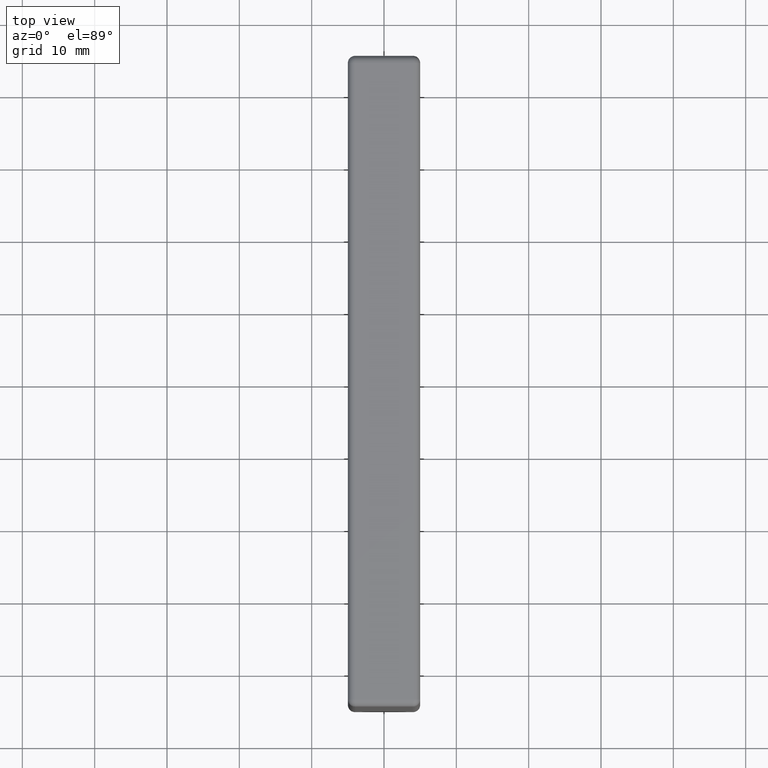
[diagram: clean part render]
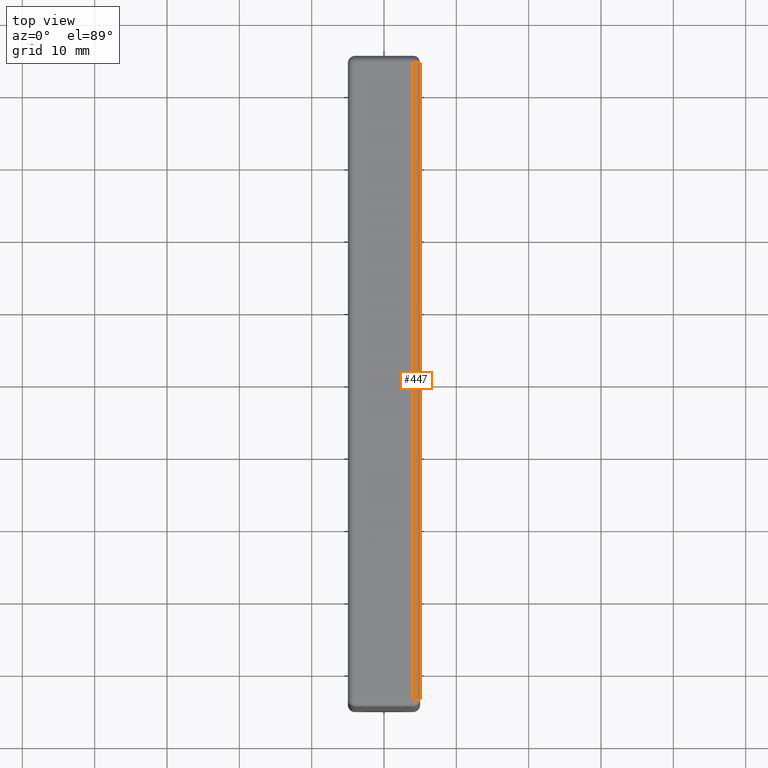
[diagram: same view with one face highlighted and labeled with its STEP entity id]
A machine part, top view. The second image highlights one B-rep face of the part: STEP entity #447.
In plain terms, the highlighted cylindrical surface (edge-blend (fillet) strip) has radius 1 mm, axis along (0, -1, 0).
Its self-contained STEP definition (entity closure, byte-faithful):
#54=LINE('',#777,#78);
#55=LINE('',#778,#79);
#78=VECTOR('',#636,88.);
#79=VECTOR('',#637,88.);
#93=CYLINDRICAL_SURFACE('',#506,1.);
#118=FACE_OUTER_BOUND('',#151,.T.);
#151=EDGE_LOOP('',(#366,#367,#368,#369));
#188=CIRCLE('',#476,1.);
#192=CIRCLE('',#483,1.);
#221=VERTEX_POINT('',#709);
#222=VERTEX_POINT('',#711);
#226=VERTEX_POINT('',#725);
#227=VERTEX_POINT('',#726);
#256=EDGE_CURVE('',#221,#222,#188,.F.);
#262=EDGE_CURVE('',#226,#227,#192,.F.);
#290=EDGE_CURVE('',#227,#221,#54,.T.);
#291=EDGE_CURVE('',#222,#226,#55,.T.);
#366=ORIENTED_EDGE('',*,*,#262,.T.);
#367=ORIENTED_EDGE('',*,*,#290,.T.);
#368=ORIENTED_EDGE('',*,*,#256,.T.);
#369=ORIENTED_EDGE('',*,*,#291,.T.);
#447=ADVANCED_FACE('',(#118),#93,.T.);
#476=AXIS2_PLACEMENT_3D('',#713,#556,#557);
#483=AXIS2_PLACEMENT_3D('',#727,#572,#573);
#506=AXIS2_PLACEMENT_3D('',#776,#634,#635);
#556=DIRECTION('center_axis',(0.,1.,0.));
#557=DIRECTION('ref_axis',(1.,0.,0.));
#572=DIRECTION('center_axis',(0.,-1.,0.));
#573=DIRECTION('ref_axis',(0.,0.,1.));
#634=DIRECTION('center_axis',(0.,-1.,0.));
#635=DIRECTION('ref_axis',(0.707106781186546,0.,0.707106781186549));
#636=DIRECTION('',(0.,1.,0.));
#637=DIRECTION('',(0.,-1.,0.));
#709=CARTESIAN_POINT('',(5.,44.,21.5));
#711=CARTESIAN_POINT('',(4.,44.,22.5));
#713=CARTESIAN_POINT('Origin',(4.,44.,21.5));
#725=CARTESIAN_POINT('',(4.,-44.,22.5));
#726=CARTESIAN_POINT('',(5.,-44.,21.5));
#727=CARTESIAN_POINT('Origin',(4.,-44.,21.5));
#776=CARTESIAN_POINT('Origin',(4.,22.5,21.5));
#777=CARTESIAN_POINT('',(5.,22.5,21.5));
#778=CARTESIAN_POINT('',(4.,22.5,22.5));